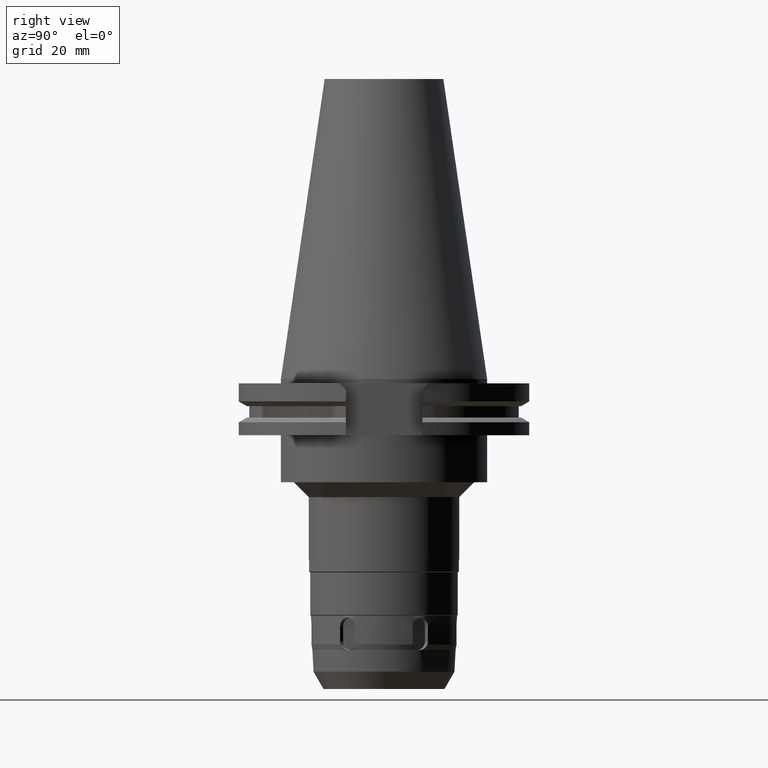
[diagram: clean part render]
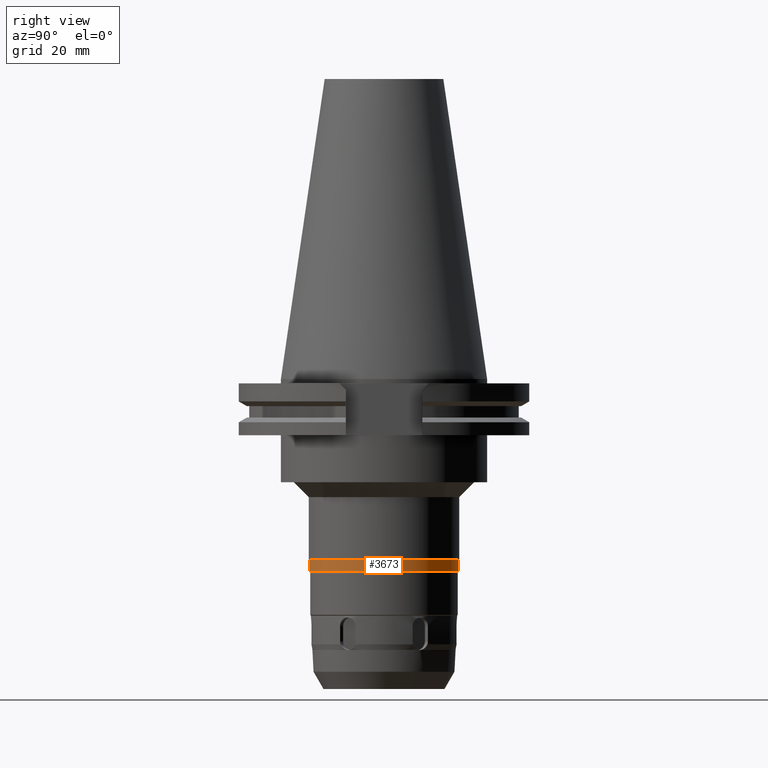
[diagram: same view with one face highlighted and labeled with its STEP entity id]
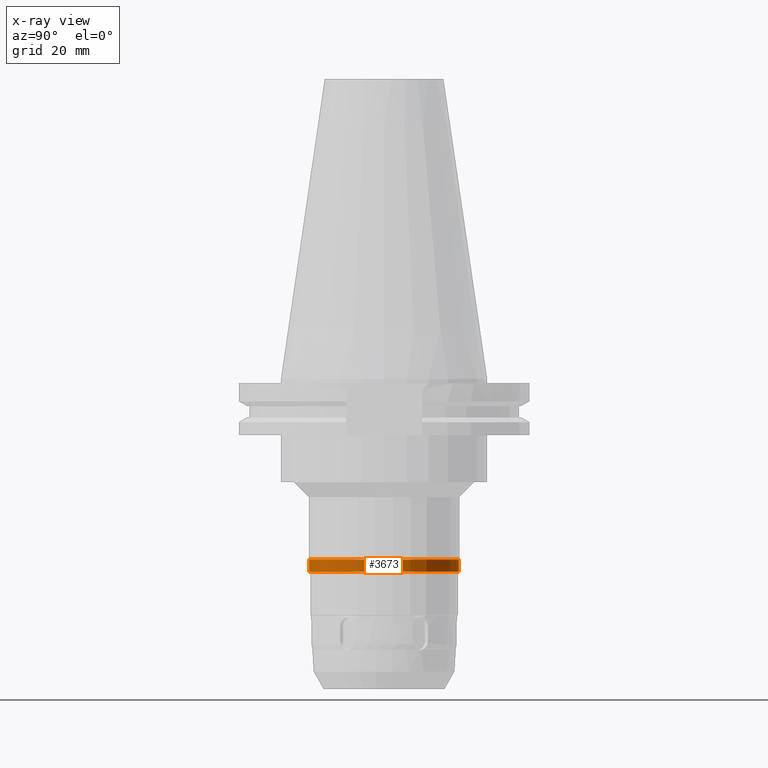
[diagram: x-ray of the same camera — body ghosted, the highlighted face saturated]
A machine part, right view. The second image highlights one B-rep face of the part: STEP entity #3673.
The next image is the same camera in x-ray: the body ghosted, the highlighted face saturated — about 0% of this face is hidden behind the body in this view.
In plain terms, the highlighted cylindrical surface (partial cylindrical patch) has radius 25.35 mm, axis along (0, 0, -1).
Its self-contained STEP definition (entity closure, byte-faithful):
#962=CARTESIAN_POINT('',(0.E0,2.595393961433E-14,-6.12E1));
#963=DIRECTION('',(0.E0,0.E0,-1.E0));
#964=DIRECTION('',(0.E0,1.E0,0.E0));
#965=AXIS2_PLACEMENT_3D('',#962,#963,#964);
#970=DIRECTION('',(0.E0,0.E0,-1.E0));
#971=VECTOR('',#970,4.E0);
#972=CARTESIAN_POINT('',(0.E0,-2.535E1,-6.12E1));
#973=LINE('',#972,#971);
#977=DIRECTION('',(0.E0,0.E0,-1.E0));
#978=VECTOR('',#977,4.E0);
#979=CARTESIAN_POINT('',(0.E0,2.535E1,-6.12E1));
#980=LINE('',#979,#978);
#999=CARTESIAN_POINT('',(0.E0,0.E0,-6.52E1));
#1000=DIRECTION('',(0.E0,0.E0,1.E0));
#1001=DIRECTION('',(0.E0,-1.E0,0.E0));
#1002=AXIS2_PLACEMENT_3D('',#999,#1000,#1001);
#2732=CARTESIAN_POINT('',(0.E0,2.535E1,-6.52E1));
#2733=VERTEX_POINT('',#2732);
#2734=CARTESIAN_POINT('',(0.E0,-2.535E1,-6.52E1));
#2735=VERTEX_POINT('',#2734);
#2736=CARTESIAN_POINT('',(0.E0,2.535E1,-6.12E1));
#2737=VERTEX_POINT('',#2736);
#2738=CARTESIAN_POINT('',(0.E0,-2.535E1,-6.12E1));
#2739=VERTEX_POINT('',#2738);
#3661=CARTESIAN_POINT('',(0.E0,2.595393961433E-14,1.1193E2));
#3662=DIRECTION('',(0.E0,0.E0,-1.E0));
#3663=DIRECTION('',(0.E0,-1.E0,0.E0));
#3664=AXIS2_PLACEMENT_3D('',#3661,#3662,#3663);
#3665=CYLINDRICAL_SURFACE('',#3664,2.535E1);
#3666=ORIENTED_EDGE('',*,*,#3651,.T.);
#3668=ORIENTED_EDGE('',*,*,#3667,.F.);
#3669=ORIENTED_EDGE('',*,*,#3654,.F.);
#3670=ORIENTED_EDGE('',*,*,#3641,.F.);
#3671=EDGE_LOOP('',(#3666,#3668,#3669,#3670));
#3672=FACE_OUTER_BOUND('',#3671,.F.);
#966=CIRCLE('',#965,2.535E1);
#1003=CIRCLE('',#1002,2.535E1);
#3641=EDGE_CURVE('',#2737,#2739,#966,.T.);
#3651=EDGE_CURVE('',#2737,#2733,#980,.T.);
#3654=EDGE_CURVE('',#2739,#2735,#973,.T.);
#3667=EDGE_CURVE('',#2735,#2733,#1003,.T.);
#3673=ADVANCED_FACE('',(#3672),#3665,.T.);